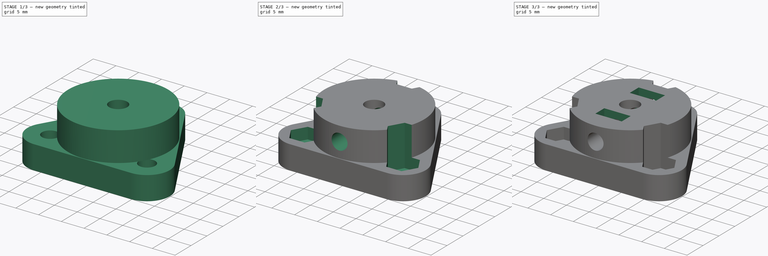
[diagram: build sequence overview — one tinted view per stage of 3, left to right]
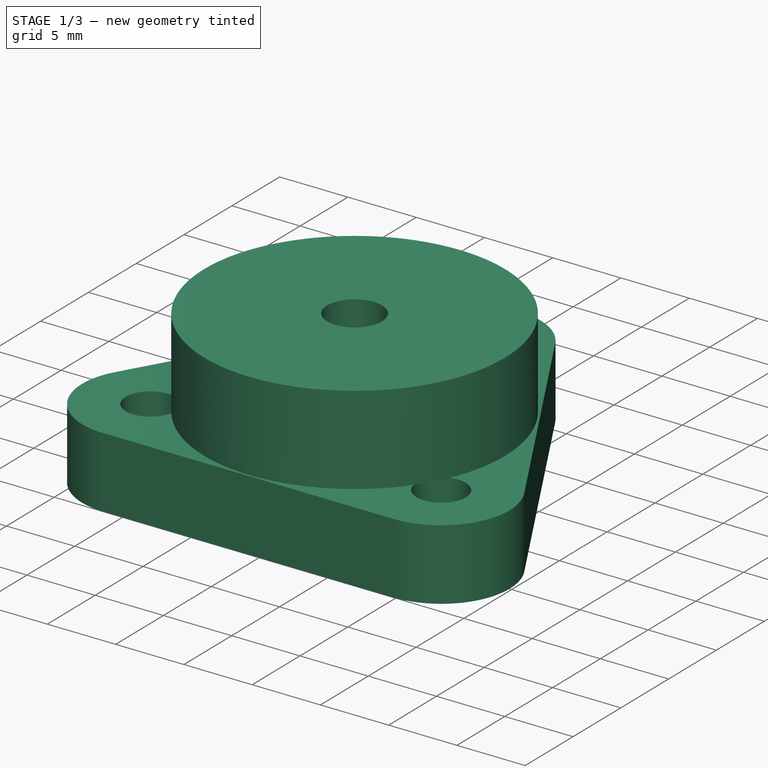
[diagram: stage 1 of 3 — iso view after this stage's code; geometry added in this stage tinted green]
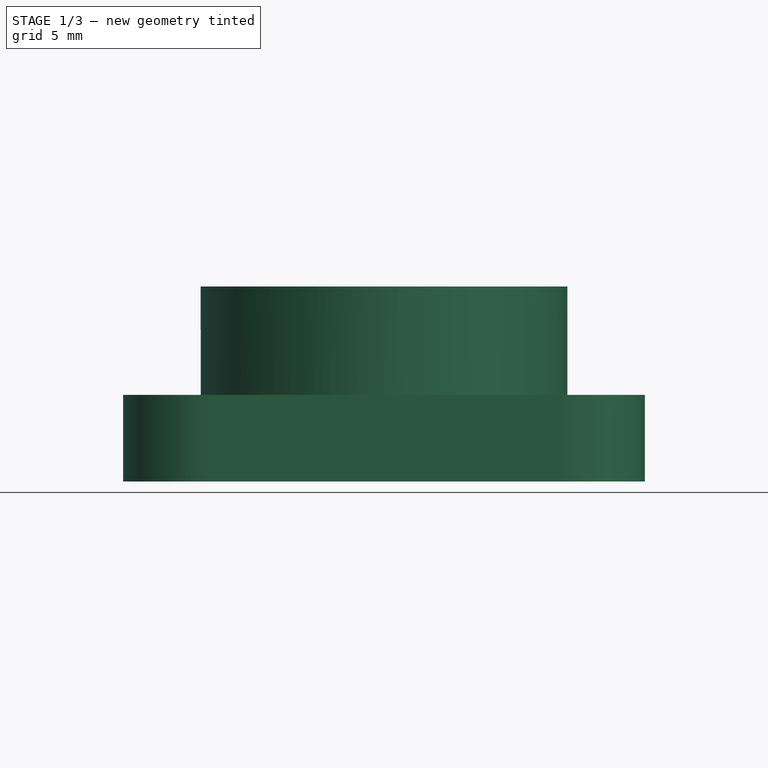
[diagram: stage 1 of 3 — front view after this stage's code; geometry added in this stage tinted green]
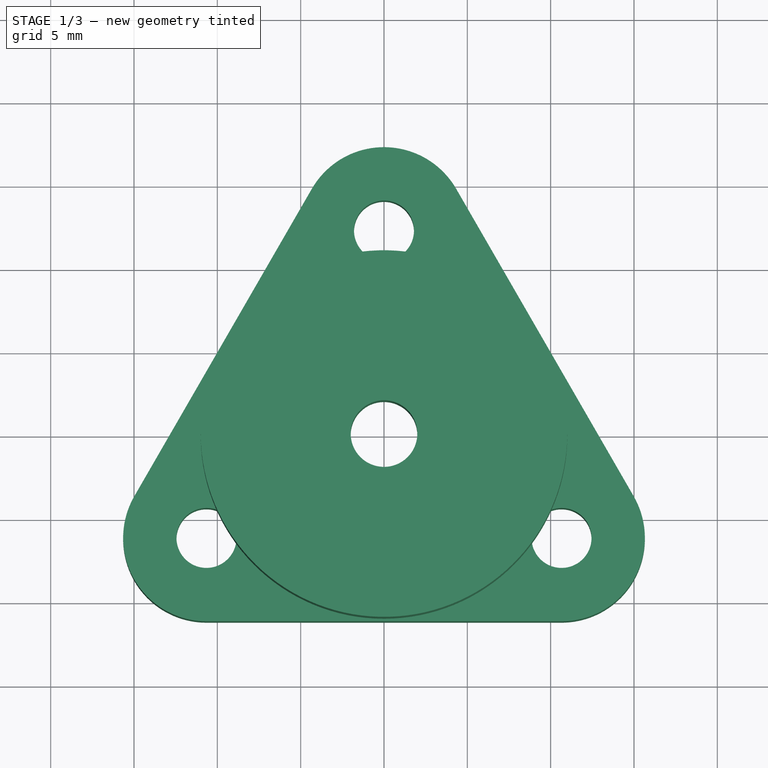
[diagram: stage 1 of 3 — top view after this stage's code; geometry added in this stage tinted green]
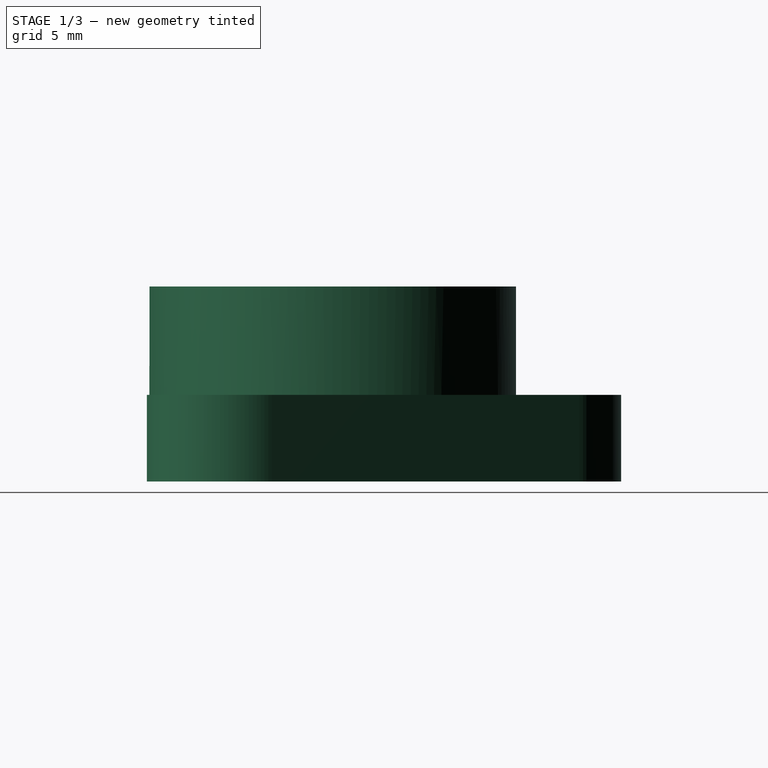
[diagram: stage 1 of 3 — right view after this stage's code; geometry added in this stage tinted green]
FCSTD DOCUMENT  (FreeCAD 0.17R13541 (Git))
Label: HP600_wheel-adapter_v2
License: All rights reserved
LicenseURL: http://en.wikipedia.org/wiki/All_rights_reserved
objects: Sketcher::SketchObject×7, PartDesign::Pocket×4, PartDesign::Pad×3, PartDesign::Chamfer×1, PartDesign::Body×1
note: 23 computed .brp shape members not serialized (recipe doc carries the construction recipe); baked Part::Feature solids carry a one-line shape summary decoded from their .brp

FEATURE [Sketcher::SketchObject] Sketch
  MapMode = 5
  Support = -> [XY_Plane]
  sketch-geometry (12):
    g0: LineSegment StartX=-14.9822 StartY=-3.65 StartZ=0 EndX=-4.33013 EndY=14.8 EndZ=0
    g1: LineSegment StartX=4.33013 StartY=14.8 StartZ=0 EndX=14.9822 EndY=-3.65 EndZ=0
    g2: LineSegment StartX=10.6521 StartY=-11.15 StartZ=0 EndX=-10.6521 EndY=-11.15 EndZ=0
    g3: ArcOfCircle CenterX=3.4e-11 CenterY=12.3 CenterZ=0 NormalX=0 NormalY=0 NormalZ=1 AngleXU=0 Radius=5 StartAngle=0.523599 EndAngle=2.61799
    g4: ArcOfCircle CenterX=-10.6521 CenterY=-6.15 CenterZ=0 NormalX=0 NormalY=0 NormalZ=1 AngleXU=0 Radius=5 StartAngle=2.61799 EndAngle=4.71239
    g5: ArcOfCircle CenterX=10.6521 CenterY=-6.15 CenterZ=0 NormalX=0 NormalY=0 NormalZ=1 AngleXU=0 Radius=5 StartAngle=4.71239 EndAngle=6.80678
    g6: Circle CenterX=3.4e-11 CenterY=12.3 CenterZ=0 NormalX=0 NormalY=0 NormalZ=1 AngleXU=0 Radius=1.8
    g7: Circle CenterX=-10.6521 CenterY=-6.15 CenterZ=0 NormalX=0 NormalY=0 NormalZ=1 AngleXU=0 Radius=1.8
    g8: Circle CenterX=10.6521 CenterY=-6.15 CenterZ=0 NormalX=0 NormalY=0 NormalZ=1 AngleXU=0 Radius=1.8
    g9: Circle [constr] CenterX=0 CenterY=0 CenterZ=0 NormalX=0 NormalY=0 NormalZ=1 AngleXU=0 Radius=7
    g10: Circle [constr] CenterX=0 CenterY=0 CenterZ=0 NormalX=0 NormalY=0 NormalZ=1 AngleXU=0 Radius=12.3
    g11: Circle [constr] CenterX=0 CenterY=0 CenterZ=0 NormalX=0 NormalY=0 NormalZ=1 AngleXU=0 Radius=17.5
  constraints (27):
    c: Horizontal(g2)
    c: Tangent(g0,g3) = 1.5708
    c: Tangent(g1,g3) = 1.5708
    c: Tangent(g0,g4) = 1.5708
    c: Tangent(g2,g4) = 1.5708
    c: Tangent(g2,g5) = 1.5708
    c: Tangent(g1,g5) = 1.5708
    c: Equal(g4,g5)
    c: Equal(g5,g3)
    c: Equal(g0,g1)
    c: Equal(g1,g2)
    c: Symmetric(g2,g2,g-2)
    c: Radius(g4) = 5
    c: Coincident(g6,g3)
    c: Coincident(g7,g4)
    c: Coincident(g8,g5)
    c: Equal(g8,g7)
    c: Equal(g7,g6)
    c: Radius(g6) = 1.8
    c: Coincident(g9,g-1)
    c: Radius(g9) = 7
    c: Coincident(g10,g-1)
    c: PointOnObject(g4,g10)
    c: PointOnObject(g3,g10)
    c: Radius(g10) = 12.3
    c: Radius(g11) = 17.5
    c: Coincident(g11,g-1)
FEATURE [PartDesign::Pad] Pad
  Length = 5.2
  Length2 = 100
  Profile = -> Sketch
  Type = 0
FEATURE [Sketcher::SketchObject] Sketch002
  MapMode = 5
  Placement = pos=(0,0,5.2) rot=(0,0,1;0rad)
  Support = -> [Pad]
  sketch-geometry (3):
    g0: Circle CenterX=0 CenterY=0 CenterZ=0 NormalX=0 NormalY=0 NormalZ=1 AngleXU=0 Radius=11
    g1: Circle [constr] CenterX=0 CenterY=0 CenterZ=0 NormalX=0 NormalY=0 NormalZ=1 AngleXU=0 Radius=7.21688
    g2: Circle CenterX=0 CenterY=0 CenterZ=0 NormalX=0 NormalY=0 NormalZ=1 AngleXU=0 Radius=2
  constraints (5):
    c: Coincident(g0,g-1)
    c: Coincident(g1,g-1)
    c: Radius(g0) = 11
    c: Coincident(g2,g-1)
    c: Radius(g2) = 2
FEATURE [PartDesign::Pad] Pad001  label="ShaftHub"
  BaseFeature = -> Pad
  Length = 6.5
  Length2 = 100
  Profile = -> Sketch002
  Type = 0
FEATURE [Sketcher::SketchObject] Sketch003
  MapMode = 5
  Placement = pos=(0,0,0) rot=(1,0,0;3.14159rad)
  Support = -> [Pad001]
  sketch-geometry (1):
    g0: Circle CenterX=0 CenterY=0 CenterZ=0 NormalX=0 NormalY=0 NormalZ=1 AngleXU=0 Radius=7.3
  constraints (2):
    c: Coincident(g0,g-1)
    c: Radius(g0) = 7.3
FEATURE [PartDesign::Pocket] Pocket001  label="wheelHubPocket"
  BaseFeature = -> Pad001
  Length = 5.2
  Length2 = 100
  Profile = -> Sketch003
  Type = 0
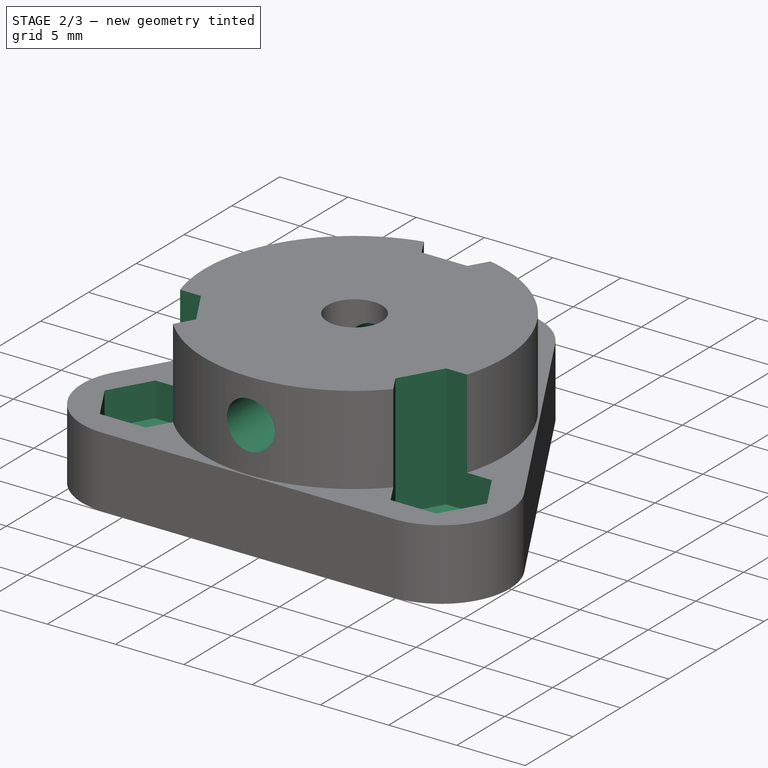
[diagram: stage 2 of 3 — iso view after this stage's code; geometry added in this stage tinted green]
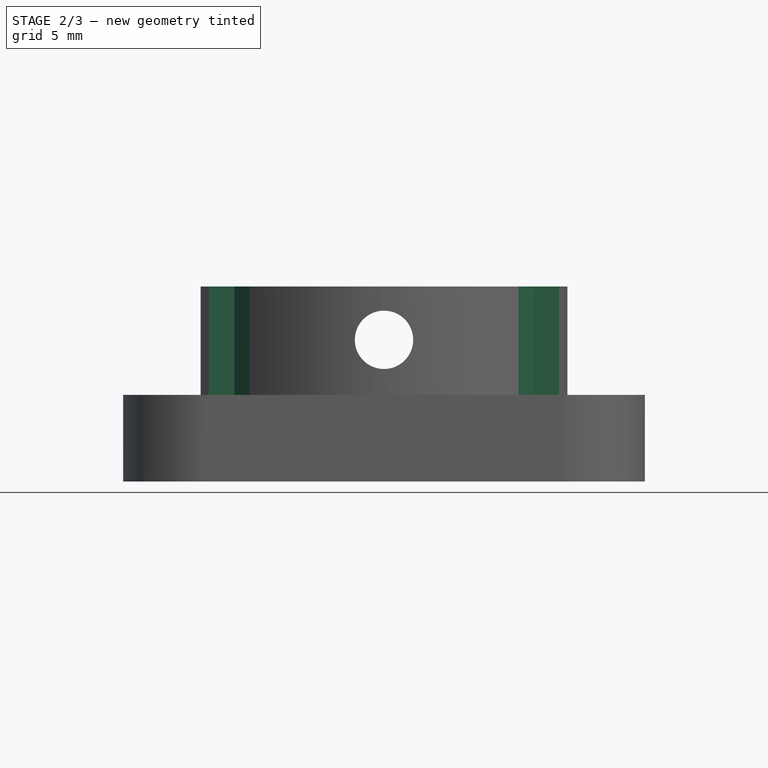
[diagram: stage 2 of 3 — front view after this stage's code; geometry added in this stage tinted green]
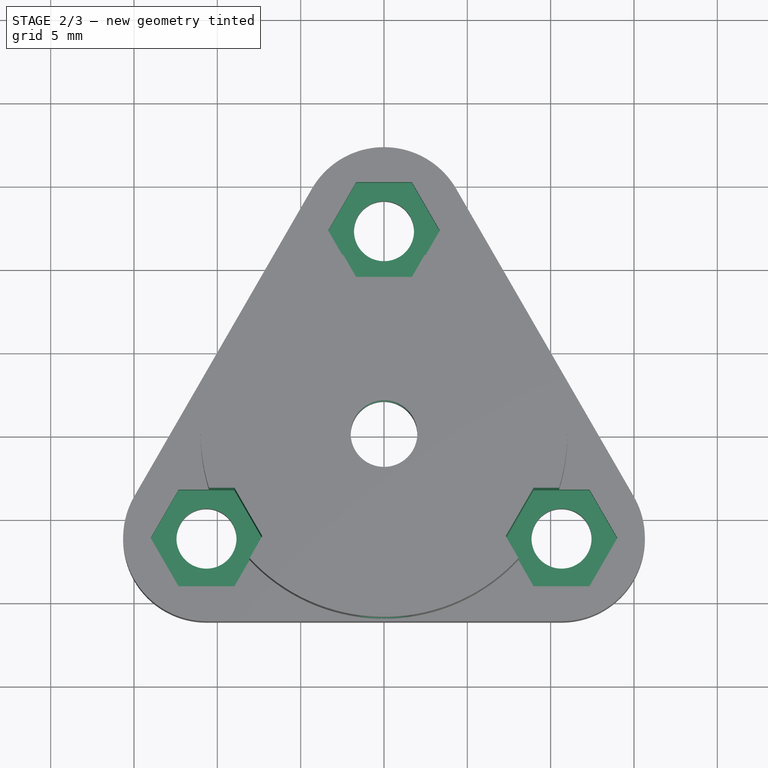
[diagram: stage 2 of 3 — top view after this stage's code; geometry added in this stage tinted green]
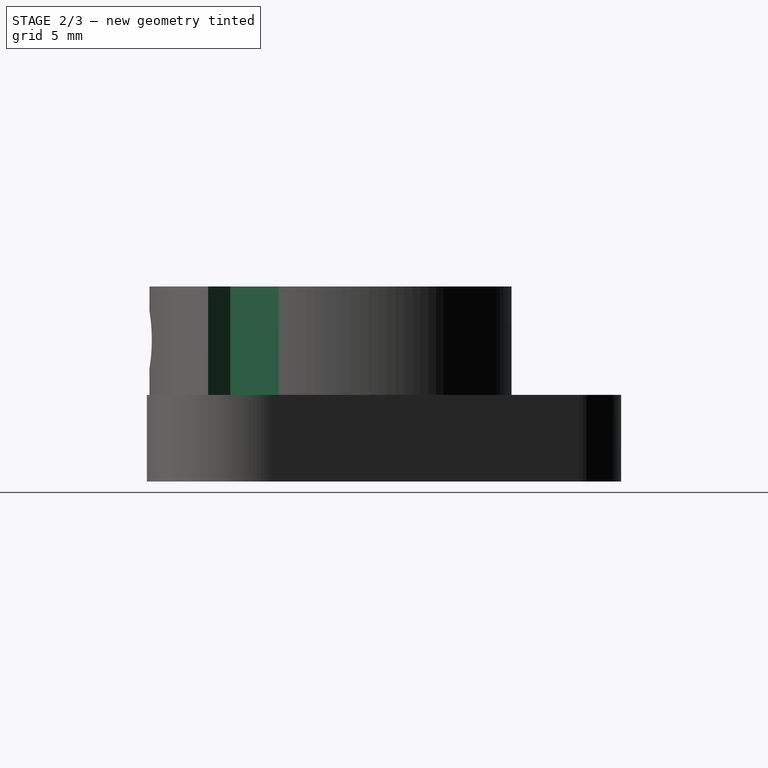
[diagram: stage 2 of 3 — right view after this stage's code; geometry added in this stage tinted green]
FEATURE [Sketcher::SketchObject] Sketch004
  MapMode = 5
  Placement = pos=(0,0,11.7) rot=(0,0,1;0rad)
  Support = -> [Pocket001]
  sketch-geometry (24):
    g0: Circle [constr] CenterX=0 CenterY=0 CenterZ=0 NormalX=0 NormalY=0 NormalZ=1 AngleXU=0 Radius=12.3
    g1: LineSegment StartX=-7.30348 StartY=-6.15 StartZ=0 EndX=-8.9778 EndY=-3.25 EndZ=0
    g2: LineSegment StartX=-8.9778 StartY=-3.25 StartZ=0 EndX=-12.3264 EndY=-3.25 EndZ=0
    g3: LineSegment StartX=-12.3264 StartY=-3.25 StartZ=0 EndX=-14.0007 EndY=-6.15 EndZ=0
    g4: LineSegment StartX=-14.0007 StartY=-6.15 StartZ=0 EndX=-12.3264 EndY=-9.05 EndZ=0
    g5: LineSegment StartX=-12.3264 StartY=-9.05 StartZ=0 EndX=-8.9778 EndY=-9.05 EndZ=0
    g6: LineSegment StartX=-8.9778 StartY=-9.05 StartZ=0 EndX=-7.30348 EndY=-6.15 EndZ=0
    g7: Circle [constr] CenterX=-10.6521 CenterY=-6.15 CenterZ=0 NormalX=0 NormalY=0 NormalZ=1 AngleXU=0 Radius=3.34863
    g8: LineSegment StartX=1.67432 StartY=9.4 StartZ=0 EndX=3.34863 EndY=12.3 EndZ=0
    g9: LineSegment StartX=3.34863 StartY=12.3 StartZ=0 EndX=1.67432 EndY=15.2 EndZ=0
    g10: LineSegment StartX=1.67432 StartY=15.2 StartZ=0 EndX=-1.67432 EndY=15.2 EndZ=0
    g11: LineSegment StartX=-1.67432 StartY=15.2 StartZ=0 EndX=-3.34863 EndY=12.3 EndZ=0
    g12: LineSegment StartX=-3.34863 StartY=12.3 StartZ=0 EndX=-1.67432 EndY=9.4 EndZ=0
    g13: LineSegment StartX=-1.67432 StartY=9.4 StartZ=0 EndX=1.67432 EndY=9.4 EndZ=0
    g14: Circle [constr] CenterX=0 CenterY=12.3 CenterZ=0 NormalX=0 NormalY=0 NormalZ=1 AngleXU=0 Radius=3.34863
    g15: LineSegment StartX=12.3264 StartY=-9.05 StartZ=0 EndX=14.0007 EndY=-6.15 EndZ=0
    g16: LineSegment StartX=14.0007 StartY=-6.15 StartZ=0 EndX=12.3264 EndY=-3.25 EndZ=0
    g17: LineSegment StartX=12.3264 StartY=-3.25 StartZ=0 EndX=8.9778 EndY=-3.25 EndZ=0
    g18: LineSegment StartX=8.9778 StartY=-3.25 StartZ=0 EndX=7.30348 EndY=-6.15 EndZ=0
    g19: LineSegment StartX=7.30348 StartY=-6.15 StartZ=0 EndX=8.9778 EndY=-9.05 EndZ=0
    g20: LineSegment StartX=8.9778 StartY=-9.05 StartZ=0 EndX=12.3264 EndY=-9.05 EndZ=0
    g21: Circle [constr] CenterX=10.6521 CenterY=-6.15 CenterZ=0 NormalX=0 NormalY=0 NormalZ=1 AngleXU=0 Radius=3.34863
    g22: LineSegment [constr] StartX=-10.6521 StartY=-6.15 StartZ=0 EndX=0 EndY=0 EndZ=0
    g23: LineSegment [constr] StartX=0 StartY=0 StartZ=0 EndX=10.6521 EndY=-6.15 EndZ=0
  constraints (57):
    c: Coincident(g0,g-1)
    c: Coincident(g1,g2)
    c: Coincident(g2,g3)
    c: Coincident(g3,g4)
    c: Coincident(g4,g5)
    c: Coincident(g5,g6)
    c: Coincident(g6,g1)
    c: Equal(g1, g2-g6) x5
    c: PointOnObject(g1,g7)
    c: PointOnObject(g2,g7)
    c: PointOnObject(g3,g7)
    c: PointOnObject(g4,g7)
    c: PointOnObject(g5,g7)
    c: PointOnObject(g6,g7)
    c: PointOnObject(g7,g0)
    c: Coincident(g8,g9)
    c: Coincident(g9,g10)
    c: Coincident(g10,g11)
    c: Coincident(g11,g12)
    c: Coincident(g12,g13)
    c: Coincident(g13,g8)
    c: Equal(g8, g9-g13) x5
    c: PointOnObject(g8,g14)
    c: PointOnObject(g9,g14)
    c: PointOnObject(g10,g14)
    c: PointOnObject(g11,g14)
    c: PointOnObject(g12,g14)
    c: PointOnObject(g13,g14)
    c: PointOnObject(g14,g0)
    c: Coincident(g15,g16)
    c: Coincident(g16,g17)
    c: Coincident(g17,g18)
    c: Coincident(g18,g19)
    c: Coincident(g19,g20)
    c: Coincident(g20,g15)
    c: Equal(g15, g16-g20) x5
    c: PointOnObject(g15,g21)
    c: PointOnObject(g16,g21)
    c: PointOnObject(g17,g21)
    c: PointOnObject(g18,g21)
    c: PointOnObject(g19,g21)
    c: PointOnObject(g20,g21)
    c: PointOnObject(g21,g0)
    c: Equal(g7,g21)
    c: Equal(g21,g14)
    c: PointOnObject(g14,g-2)
    c: Coincident(g22,g7)
    c: Coincident(g22,g-1)
    c: Coincident(g23,g-1)
    c: Coincident(g23,g21)
    c: Angle(g-2,g22) = 2.0944
    c: Angle(g23,g-2) = 2.0944
    c: Radius(g0) = 12.3
    c: Horizontal(g5)
    c: Horizontal(g20)
    c: Horizontal(g13)
    c: DistanceY(g4,g2) = 5.8
FEATURE [PartDesign::Pocket] Pocket  label="WheelNutsPockets"
  BaseFeature = -> Pocket001
  Length = 9
  Length2 = 100
  Profile = -> Sketch004
  Type = 0
FEATURE [Sketcher::SketchObject] Sketch005
  MapMode = 5
  Placement = pos=(0,-11.15,0) rot=(1,0,0;1.5708rad)
  Support = -> [Pocket]
  sketch-geometry (1):
    g0: Circle CenterX=0 CenterY=8.5 CenterZ=0 NormalX=0 NormalY=0 NormalZ=1 AngleXU=0 Radius=1.75
  constraints (3):
    c: PointOnObject(g0,g-2)
    c: Radius(g0) = 1.75
    c: DistanceY(g0) = 8.5
FEATURE [PartDesign::Pocket] Pocket002  label="ShaftScrewHole"
  BaseFeature = -> Pocket
  Length = 5
  Length2 = 100
  Profile = -> Sketch005
  Type = 1
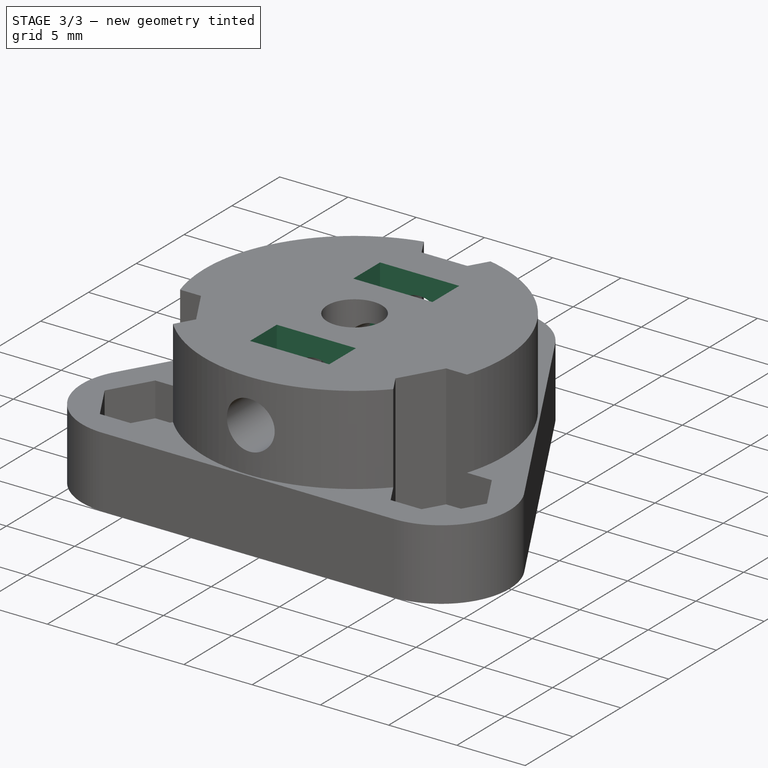
[diagram: stage 3 of 3 — iso view after this stage's code; geometry added in this stage tinted green]
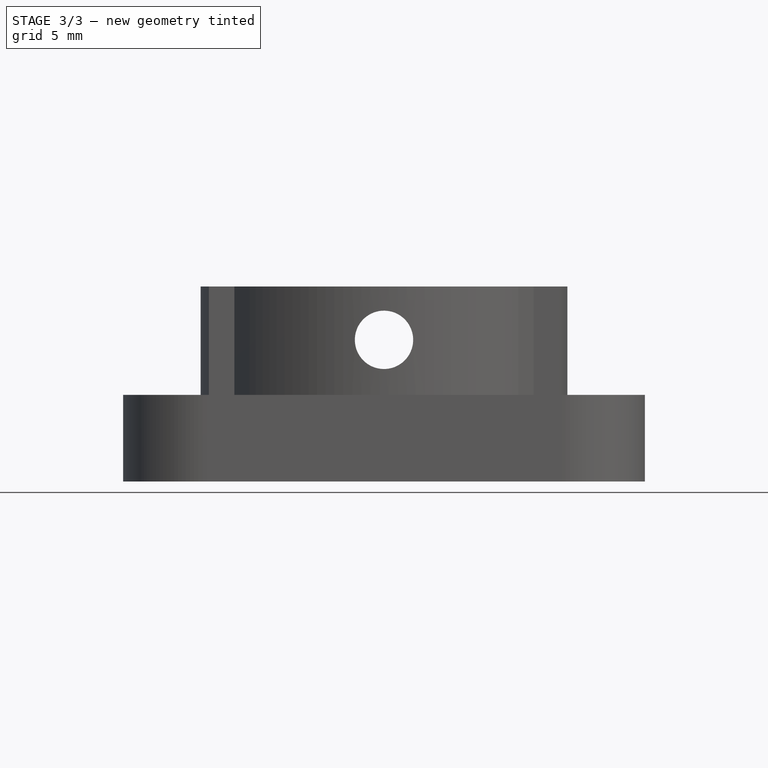
[diagram: stage 3 of 3 — front view after this stage's code; geometry added in this stage tinted green]
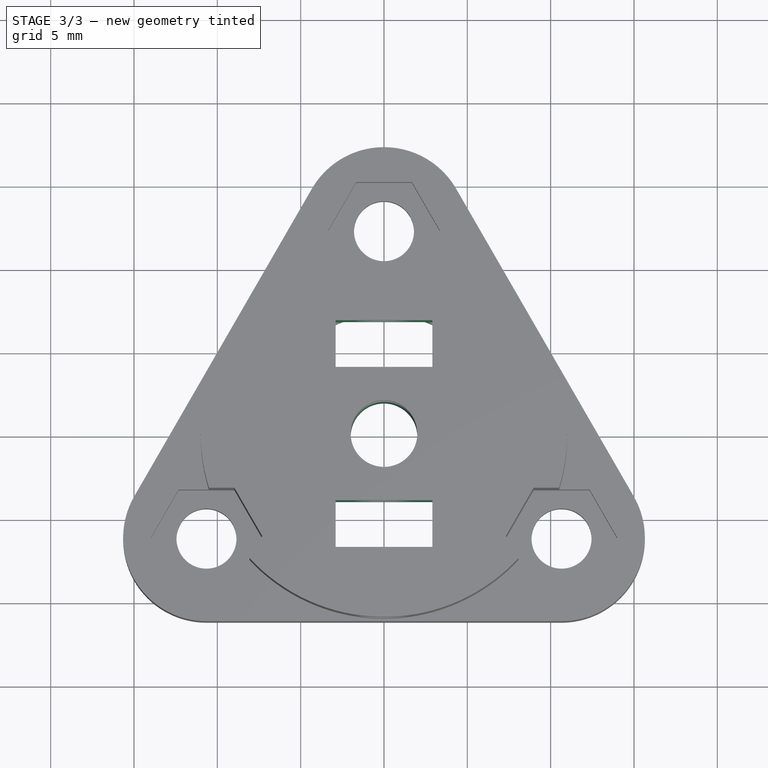
[diagram: stage 3 of 3 — top view after this stage's code; geometry added in this stage tinted green]
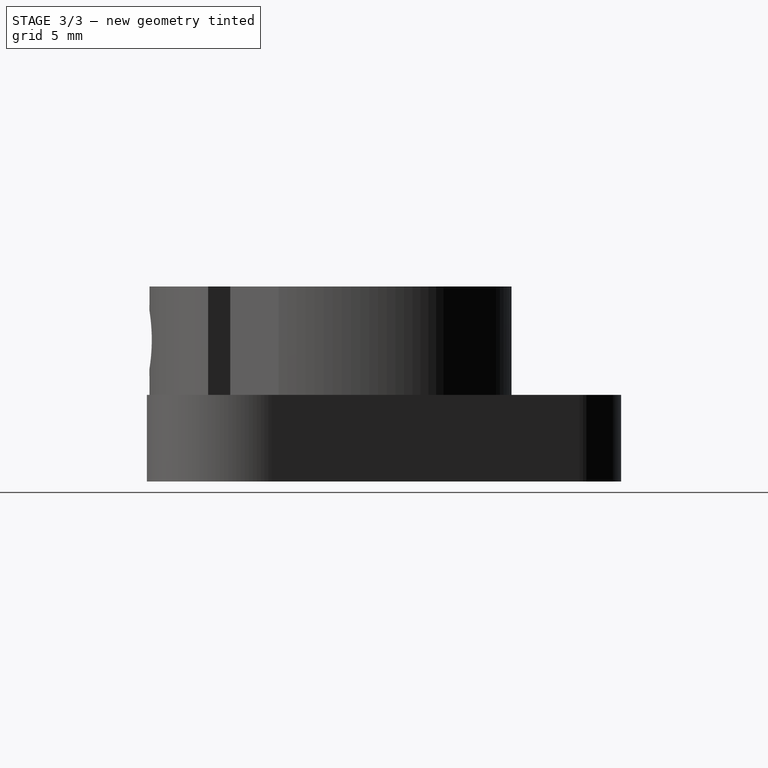
[diagram: stage 3 of 3 — right view after this stage's code; geometry added in this stage tinted green]
FEATURE [Sketcher::SketchObject] Sketch006
  MapMode = 5
  Placement = pos=(0,0,11.7) rot=(0,0,1;0rad)
  Support = -> [Pocket002]
  sketch-geometry (8):
    g0: LineSegment StartX=-2.9 StartY=6.8 StartZ=0 EndX=2.9 EndY=6.8 EndZ=0
    g1: LineSegment StartX=2.9 StartY=6.8 StartZ=0 EndX=2.9 EndY=4 EndZ=0
    g2: LineSegment StartX=2.9 StartY=4 StartZ=0 EndX=-2.9 EndY=4 EndZ=0
    g3: LineSegment StartX=-2.9 StartY=4 StartZ=0 EndX=-2.9 EndY=6.8 EndZ=0
    g4: LineSegment StartX=-2.9 StartY=-4 StartZ=0 EndX=2.9 EndY=-4 EndZ=0
    g5: LineSegment StartX=2.9 StartY=-4 StartZ=0 EndX=2.9 EndY=-6.8 EndZ=0
    g6: LineSegment StartX=2.9 StartY=-6.8 StartZ=0 EndX=-2.9 EndY=-6.8 EndZ=0
    g7: LineSegment StartX=-2.9 StartY=-6.8 StartZ=0 EndX=-2.9 EndY=-4 EndZ=0
  constraints (23):
    c: Coincident(g0,g1)
    c: Coincident(g1,g2)
    c: Coincident(g2,g3)
    c: Coincident(g3,g0)
    c: Horizontal(g0)
    c: Horizontal(g2)
    c: Vertical(g1)
    c: Vertical(g3)
    c: Coincident(g4,g5)
    c: Coincident(g5,g6)
    c: Coincident(g6,g7)
    c: Coincident(g7,g4)
    c: Horizontal(g4)
    c: Horizontal(g6)
    c: Vertical(g5)
    c: Vertical(g7)
    c: Equal(g3,g7)
    c: Equal(g2,g4)
    c: Symmetric(g2,g1,g-2)
    c: Symmetric(g2,g4,g-1)
    c: DistanceY(g7,g7) = 2.8
    c: DistanceX(g6,g6) = 5.8
    c: DistanceY(g4,g1) = 8
FEATURE [PartDesign::Pocket] Pocket003  label="ShaftNutsPocket"
  BaseFeature = -> Pocket002
  Length = 8
  Length2 = 100
  Profile = -> Sketch006
  Type = 0
FEATURE [Sketcher::SketchObject] Sketch007
  MapMode = 5
  Placement = pos=(0,0,5.2) rot=(1,0,0;3.14159rad)
  Support = -> [Pocket003]
  sketch-geometry (2):
    g0: Circle CenterX=0 CenterY=0 CenterZ=0 NormalX=0 NormalY=0 NormalZ=1 AngleXU=0 Radius=2
    g1: Circle CenterX=0 CenterY=0 CenterZ=0 NormalX=0 NormalY=0 NormalZ=1 AngleXU=0 Radius=3.75
  constraints (4):
    c: Coincident(g0,g-1)
    c: Radius(g0) = 2
    c: Radius(g1) = 3.75
    c: Coincident(g1,g-1)
FEATURE [PartDesign::Pad] Pad002  label="WheelCoreBushing"
  BaseFeature = -> Pocket003
  Length = 5.2
  Length2 = 100
  Profile = -> Sketch007
  Type = 0
FEATURE [PartDesign::Chamfer] Chamfer
  Base = -> Pad002 [Edge15]
  BaseFeature = -> Pad002
  Size = 0.6
FEATURE [PartDesign::Body] Body
  Group = -> [Sketch,Pad,Sketch002,Pad001,Sketch003,Pocket001,Sketch004,Pocket,Sketch005,Pocket002,Sketch006,Pocket003,Sketch007,Pad002,Chamfer]
  Origin = -> Origin
  Tip = -> Chamfer
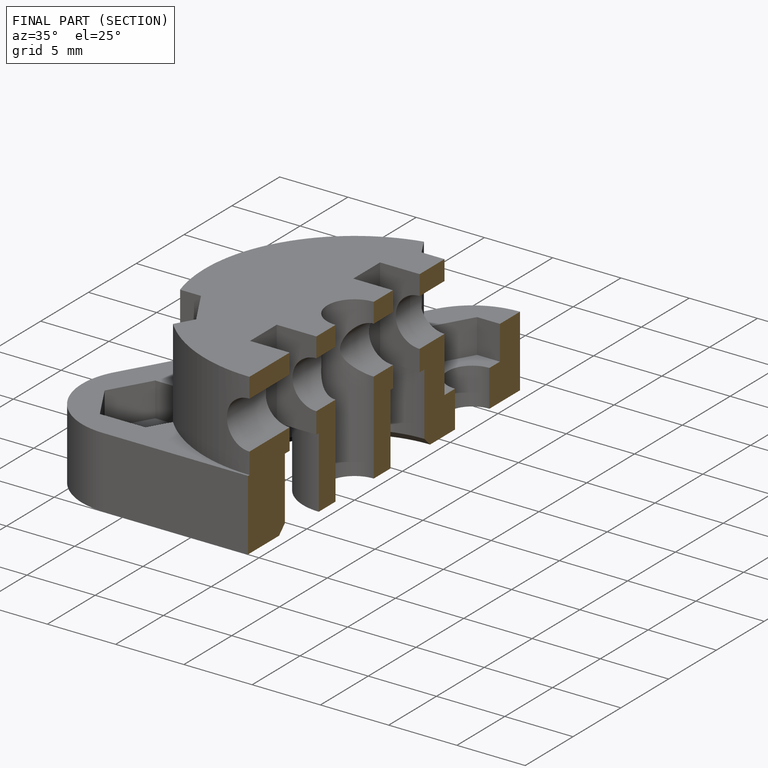
[diagram: finished part — half-section view (interior)]
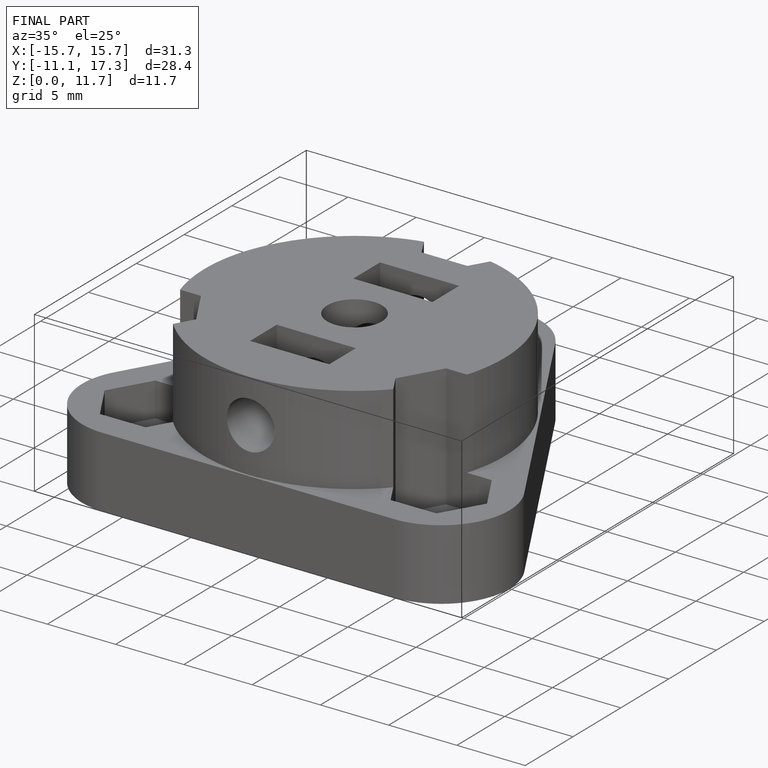
[diagram: finished part — iso view with bounding-box wireframe]
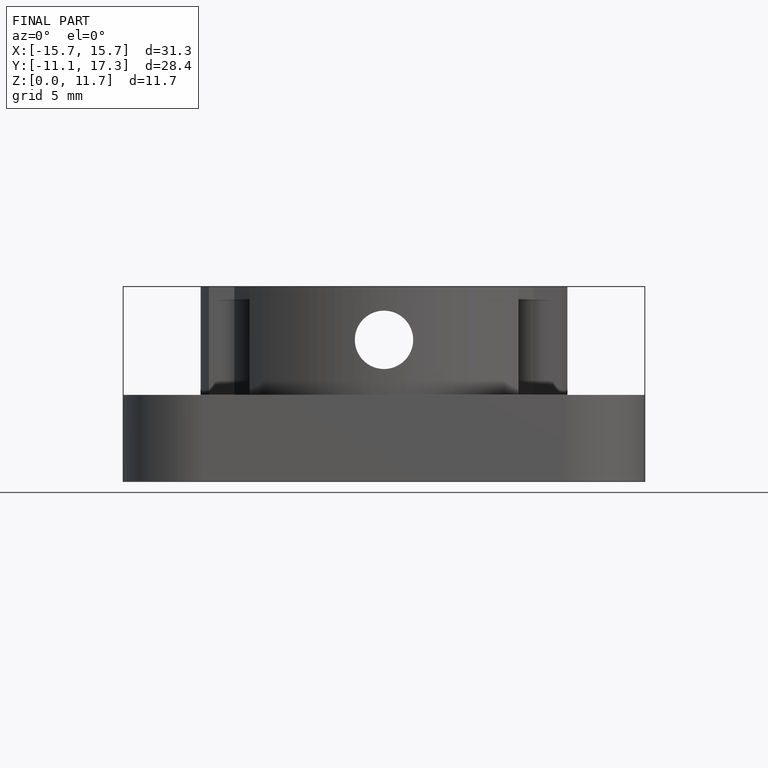
[diagram: finished part — front view with bounding-box wireframe]
